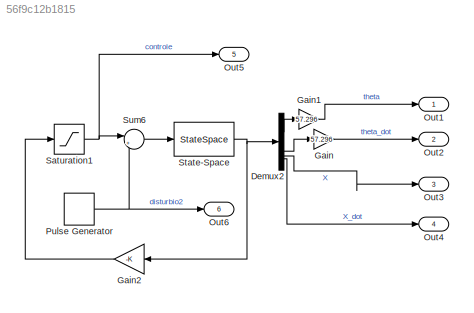
MODEL slx_56f9c12b1815
KIND model
CONFIG AbsTol = auto
CONFIG EnableMultiTasking = off
CONFIG FixedStep = auto
CONFIG MaxStep = 0.01
CONFIG MinStep = auto
CONFIG RelTol = 1e-10
CONFIG SampleTimeConstraint = Unconstrained
CONFIG SolverName = VariableStepAuto
CONFIG StartTime = 0.0
CONFIG StopTime = 40
BLOCK [Demux] Demux2
BLOCK [Gain] Gain
  Gain = 57.296
BLOCK [Gain] Gain1
  Gain = 57.296
BLOCK [Gain] Gain2
  Gain = -K
  Multiplication = Matrix(K*u)
  NameLocation = top
BLOCK [Outport] Out1
BLOCK [Outport] Out2
  Port = 2
BLOCK [Outport] Out3
  Port = 3
BLOCK [Outport] Out4
  Port = 4
BLOCK [Outport] Out5
  Port = 5
BLOCK [Outport] Out6
  Port = 6
BLOCK [DiscretePulseGenerator] Pulse Generator
  Amplitude = 3
  Period = 100
  PhaseDelay = 1
  PulseType = Time based
  PulseWidth = 99
BLOCK [Saturate] Saturation1
  LowerLimit = -12
  UpperLimit = 12
BLOCK [StateSpace] State-Space
  A = A
  B = B
  C = C
  D = D
  InitialCondition = 0
BLOCK [Sum] Sum6
  Inputs = |++
LINE Demux2:1 -> Gain1:1
LINE Demux2:2 -> Gain:1
LINE Demux2:3 -> Out3:1
LINE Demux2:4 -> Out4:1
LINE Gain1:1 -> Out1:1
LINE Gain2:1 -> Saturation1:1
LINE Gain:1 -> Out2:1
NET Pulse Generator:1 -> Out6:1, Sum6:2
NET Saturation1:1 -> Out5:1, Sum6:1
NET State-Space:1 -> Demux2:1, Gain2:1
LINE Sum6:1 -> State-Space:1
note: NET lines group one-source signal fan-out (src -> all destinations, sorted); 1:1 wires keep LINE
